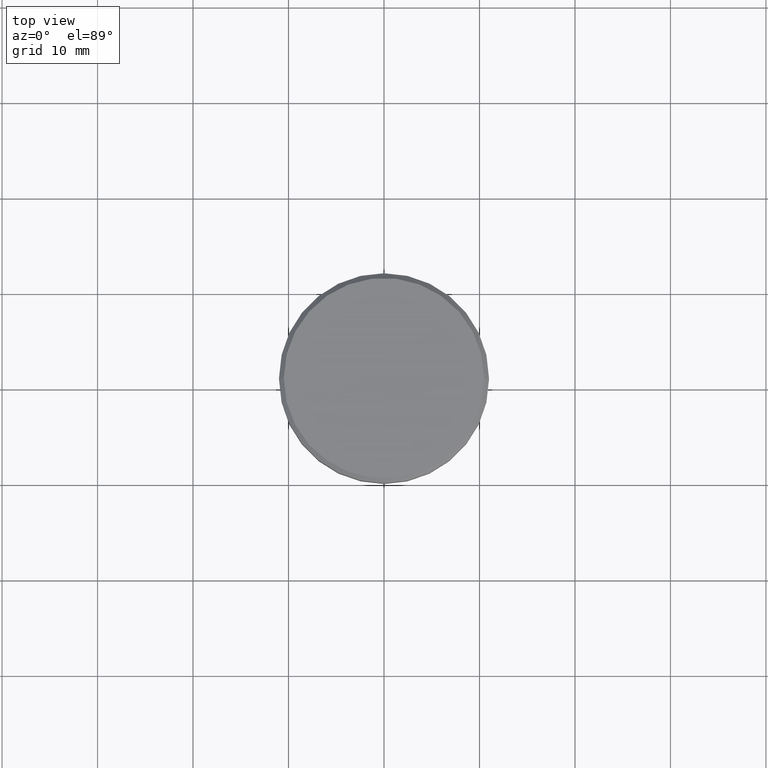
[diagram: clean part render]
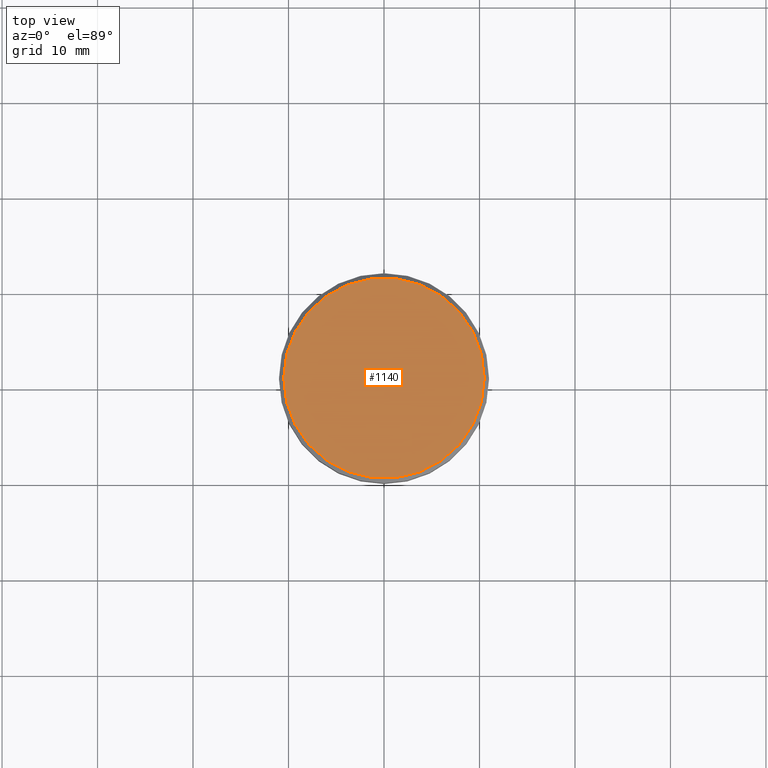
[diagram: same view with one face highlighted and labeled with its STEP entity id]
A machine part, top view. The second image highlights one B-rep face of the part: STEP entity #1140.
In plain terms, the highlighted planar face has unit normal (0, -0, 1).
Its self-contained STEP definition (entity closure, byte-faithful):
#5 = VERTEX_POINT ( 'NONE', #516 ) ;
#31 = ORIENTED_EDGE ( 'NONE', *, *, #378, .T. ) ;
#68 = DIRECTION ( 'NONE',  ( 1.000000000000000000, 0.000000000000000000, 0.000000000000000000 ) ) ;
#178 = DIRECTION ( 'NONE',  ( 1.000000000000000000, 0.000000000000000000, 0.000000000000000000 ) ) ;
#179 = ORIENTED_EDGE ( 'NONE', *, *, #1107, .T. ) ;
#182 = DIRECTION ( 'NONE',  ( -0.000000000000000000, -0.000000000000000000, 1.000000000000000000 ) ) ;
#221 = CARTESIAN_POINT ( 'NONE',  ( 0.000000000000000000, 0.000000000000000000, 0.000000000000000000 ) ) ;
#259 = PLANE ( 'NONE',  #1131 ) ;
#335 = CIRCLE ( 'NONE', #1113, 10.49999999999998224 ) ;
#364 = DIRECTION ( 'NONE',  ( 0.000000000000000000, -0.000000000000000000, 1.000000000000000000 ) ) ;
#378 = EDGE_CURVE ( 'NONE', #5, #829, #335, .T. ) ;
#466 = AXIS2_PLACEMENT_3D ( 'NONE', #910, #182, #178 ) ;
#516 = CARTESIAN_POINT ( 'NONE',  ( -10.49999999999998224, 0.000000000000000000, 0.000000000000000000 ) ) ;
#581 = CIRCLE ( 'NONE', #466, 10.49999999999998224 ) ;
#586 = DIRECTION ( 'NONE',  ( 1.000000000000000000, 0.000000000000000000, 0.000000000000000000 ) ) ;
#649 = EDGE_LOOP ( 'NONE', ( #31, #179 ) ) ;
#668 = DIRECTION ( 'NONE',  ( -0.000000000000000000, -0.000000000000000000, 1.000000000000000000 ) ) ;
#719 = FACE_OUTER_BOUND ( 'NONE', #649, .T. ) ;
#829 = VERTEX_POINT ( 'NONE', #853 ) ;
#853 = CARTESIAN_POINT ( 'NONE',  ( 10.49999999999998224, 1.316495309083403632E-15, 0.000000000000000000 ) ) ;
#910 = CARTESIAN_POINT ( 'NONE',  ( 0.000000000000000000, 0.000000000000000000, 0.000000000000000000 ) ) ;
#1107 = EDGE_CURVE ( 'NONE', #829, #5, #581, .T. ) ;
#1113 = AXIS2_PLACEMENT_3D ( 'NONE', #221, #668, #586 ) ;
#1131 = AXIS2_PLACEMENT_3D ( 'NONE', #1181, #364, #68 ) ;
#1140 = ADVANCED_FACE ( 'NONE', ( #719 ), #259, .T. ) ;
#1181 = CARTESIAN_POINT ( 'NONE',  ( 0.000000000000000000, 0.000000000000000000, 0.000000000000000000 ) ) ;